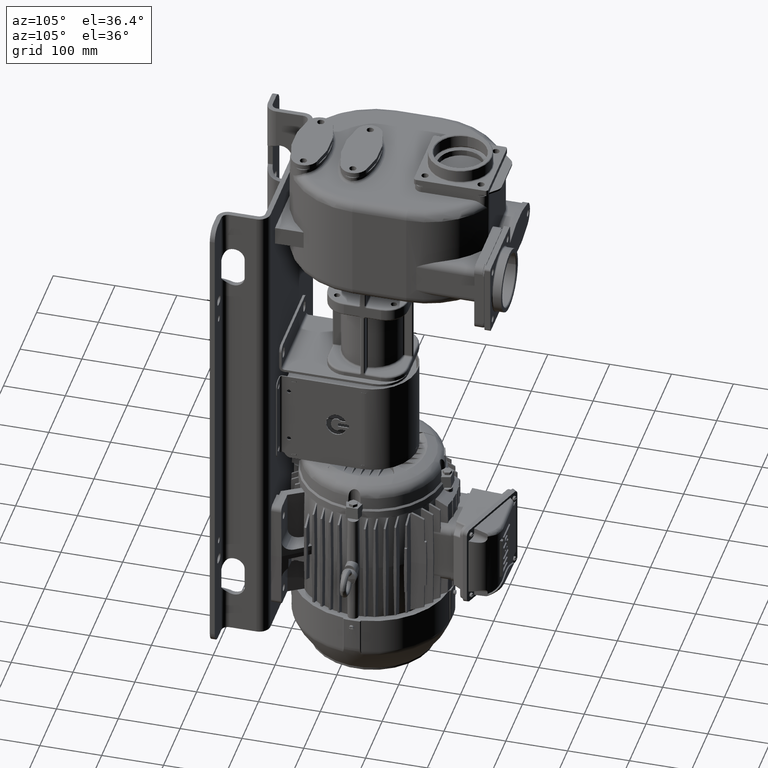
[diagram: clean part render]
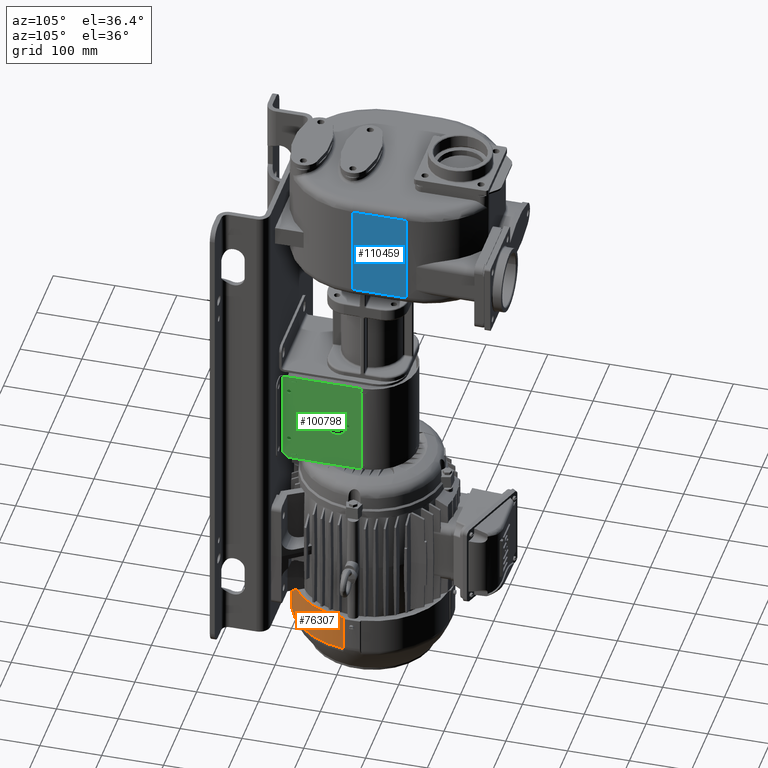
[diagram: same view with three faces highlighted in distinct colors, each labeled with its STEP entity id]
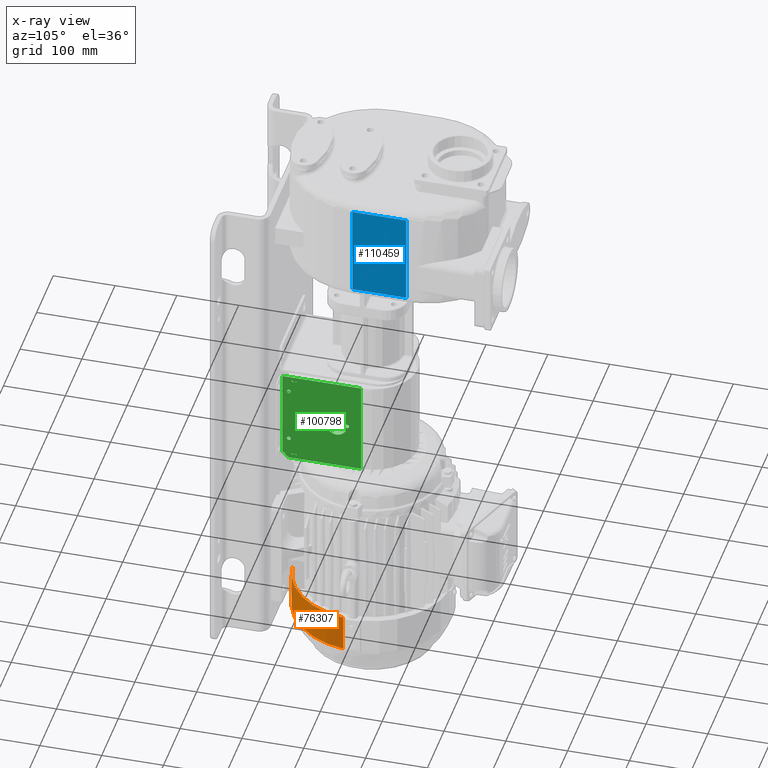
[diagram: x-ray of the same camera — body ghosted, the three highlighted faces saturated]
A machine part, auxiliary view with three faces highlighted in distinct colors.
The next image is the same camera in x-ray (body ghosted, the three faces saturated) — at least one of them is partly hidden behind the body in this view.
Their STEP definitions:

[orange] entity #76307 — the highlighted cylindrical surface (partial cylindrical patch) has radius 127.75 mm, axis along (0, 0, -1).
#5835=CARTESIAN_POINT('',(1.703458986104E-13,1.32E2,-7.E2));
#5836=DIRECTION('',(0.E0,0.E0,1.E0));
#5837=DIRECTION('',(1.165048543689E-1,-9.931901222367E-1,0.E0));
#5838=AXIS2_PLACEMENT_3D('',#5835,#5836,#5837);
#6076=DIRECTION('',(0.E0,0.E0,1.E0));
#6077=VECTOR('',#6076,5.973225400103E1);
#6078=CARTESIAN_POINT('',(1.488349514563E1,5.119961884266E0,-7.597322540010E2));
#6079=LINE('',#6078,#6077);
#8631=DIRECTION('',(0.E0,0.E0,-1.E0));
#8632=VECTOR('',#8631,5.973225400103E1);
#8633=CARTESIAN_POINT('',(1.268800381157E2,1.171165048544E2,-7.E2));
#8634=LINE('',#8633,#8632);
#8669=CARTESIAN_POINT('',(2.011025406983E-13,1.32E2,-7.597322540010E2));
#8670=DIRECTION('',(0.E0,0.E0,-1.E0));
#8671=DIRECTION('',(9.931901222367E-1,-1.165048543689E-1,0.E0));
#8672=AXIS2_PLACEMENT_3D('',#8669,#8670,#8671);
#63178=CARTESIAN_POINT('',(1.488349514563E1,5.119961884266E0,-7.E2));
#63179=CARTESIAN_POINT('',(1.268800381157E2,1.171165048544E2,-7.E2));
#63180=VERTEX_POINT('',#63178);
#63181=VERTEX_POINT('',#63179);
#63182=CARTESIAN_POINT('',(1.488349514563E1,5.119961884266E0,
-7.597322540010E2));
#63183=VERTEX_POINT('',#63182);
#63184=CARTESIAN_POINT('',(1.268800381157E2,1.171165048544E2,
-7.597322540010E2));
#63185=VERTEX_POINT('',#63184);
#76296=CARTESIAN_POINT('',(2.372577583840E-13,1.32E2,-8.299490429497E2));
#76297=DIRECTION('',(0.E0,0.E0,-1.E0));
#76298=DIRECTION('',(0.E0,-1.E0,0.E0));
#76299=AXIS2_PLACEMENT_3D('',#76296,#76297,#76298);
#76300=CYLINDRICAL_SURFACE('',#76299,1.2775E2);
#76301=ORIENTED_EDGE('',*,*,#72768,.T.);
#76302=ORIENTED_EDGE('',*,*,#76160,.T.);
#76303=ORIENTED_EDGE('',*,*,#76287,.T.);
#76304=ORIENTED_EDGE('',*,*,#72916,.T.);
#76305=EDGE_LOOP('',(#76301,#76302,#76303,#76304));
#76306=FACE_OUTER_BOUND('',#76305,.F.);
#76307=ADVANCED_FACE('',(#76306),#76300,.T.);
#5839=CIRCLE('',#5838,1.2775E2);
#8673=CIRCLE('',#8672,1.2775E2);
#72768=EDGE_CURVE('',#63180,#63181,#5839,.T.);
#72916=EDGE_CURVE('',#63183,#63180,#6079,.T.);
#76160=EDGE_CURVE('',#63181,#63185,#8634,.T.);
#76287=EDGE_CURVE('',#63185,#63183,#8673,.T.);

[blue] entity #110459 — the highlighted planar face has unit normal (1, 0, 0).
#33958=DIRECTION('',(0.E0,-1.E0,0.E0));
#33959=VECTOR('',#33958,8.709138630505E1);
#33960=CARTESIAN_POINT('',(1.33E2,2.210913863051E2,-5.5E1));
#33961=LINE('',#33960,#33959);
#33962=DIRECTION('',(0.E0,1.E0,0.E0));
#33963=VECTOR('',#33962,8.709138630482E1);
#33964=CARTESIAN_POINT('',(1.33E2,1.34E2,9.5E1));
#33965=LINE('',#33964,#33963);
#33966=DIRECTION('',(0.E0,-1.649217059215E-12,1.E0));
#33967=VECTOR('',#33966,1.5E2);
#33968=CARTESIAN_POINT('',(1.33E2,2.210913863051E2,-5.5E1));
#33969=LINE('',#33968,#33967);
#33980=DIRECTION('',(0.E0,-6.385410718697E-14,1.E0));
#33981=VECTOR('',#33980,1.5E2);
#33982=CARTESIAN_POINT('',(1.33E2,1.34E2,-5.5E1));
#33983=LINE('',#33982,#33981);
#58915=CARTESIAN_POINT('',(1.33E2,2.210913863051E2,9.5E1));
#58917=VERTEX_POINT('',#58915);
#58925=CARTESIAN_POINT('',(1.33E2,1.34E2,9.5E1));
#58926=VERTEX_POINT('',#58925);
#58954=CARTESIAN_POINT('',(1.33E2,2.210913863051E2,-5.5E1));
#58956=VERTEX_POINT('',#58954);
#58959=CARTESIAN_POINT('',(1.33E2,1.34E2,-5.5E1));
#58960=VERTEX_POINT('',#58959);
#110447=CARTESIAN_POINT('',(1.33E2,2.210913863051E2,-7.E1));
#110448=DIRECTION('',(1.E0,0.E0,0.E0));
#110449=DIRECTION('',(0.E0,-1.E0,0.E0));
#110450=AXIS2_PLACEMENT_3D('',#110447,#110448,#110449);
#110451=PLANE('',#110450);
#110452=ORIENTED_EDGE('',*,*,#107304,.T.);
#110454=ORIENTED_EDGE('',*,*,#110453,.T.);
#110455=ORIENTED_EDGE('',*,*,#110293,.T.);
#110456=ORIENTED_EDGE('',*,*,#110324,.F.);
#110457=EDGE_LOOP('',(#110452,#110454,#110455,#110456));
#110458=FACE_OUTER_BOUND('',#110457,.F.);
#110459=ADVANCED_FACE('',(#110458),#110451,.T.);
#107304=EDGE_CURVE('',#58956,#58960,#33961,.T.);
#110293=EDGE_CURVE('',#58926,#58917,#33965,.T.);
#110324=EDGE_CURVE('',#58956,#58917,#33969,.T.);
#110453=EDGE_CURVE('',#58960,#58926,#33983,.T.);

[green] entity #100798 — the highlighted planar face has unit normal (1, 0, 0).
#24159=DIRECTION('',(0.E0,-1.E0,0.E0));
#24160=VECTOR('',#24159,6.E0);
#24161=CARTESIAN_POINT('',(7.25E1,2.65E1,-4.39E2));
#24162=LINE('',#24161,#24160);
#24979=DIRECTION('',(0.E0,1.E0,0.E0));
#24980=VECTOR('',#24979,1.140501256289E2);
#24981=CARTESIAN_POINT('',(7.25E1,1.794987437107E1,-4.47E2));
#24982=LINE('',#24981,#24980);
#25536=CARTESIAN_POINT('',(7.25E1,1.794987437107E1,-4.37E2));
#25537=DIRECTION('',(1.E0,0.E0,0.E0));
#25538=DIRECTION('',(0.E0,-9.165151389912E-1,-4.E-1));
#25539=AXIS2_PLACEMENT_3D('',#25536,#25537,#25538);
#25541=DIRECTION('',(0.E0,0.E0,-1.E0));
#25542=VECTOR('',#25541,6.5E0);
#25543=CARTESIAN_POINT('',(7.25E1,1.32E2,-2.91E2));
#25544=LINE('',#25543,#25542);
#25545=DIRECTION('',(-5.684341886080E-14,-1.E0,0.E0));
#25546=VECTOR('',#25545,5.000000000001E-1);
#25547=CARTESIAN_POINT('',(7.25E1,1.32E2,-2.975E2));
#25548=LINE('',#25547,#25546);
#25549=DIRECTION('',(0.E0,0.E0,-1.E0));
#25550=VECTOR('',#25549,1.7E0);
#25551=CARTESIAN_POINT('',(7.25E1,1.315E2,-2.975E2));
#25552=LINE('',#25551,#25550);
#25553=DIRECTION('',(-8.526512829119E-14,-1.E0,-1.136868377216E-13));
#25554=VECTOR('',#25553,5.000000000001E-1);
#25555=CARTESIAN_POINT('',(7.25E1,1.32E2,-2.992E2));
#25556=LINE('',#25555,#25554);
#25557=DIRECTION('',(0.E0,0.E0,-1.E0));
#25558=VECTOR('',#25557,1.396E2);
#25559=CARTESIAN_POINT('',(7.25E1,1.32E2,-2.992E2));
#25560=LINE('',#25559,#25558);
#25561=DIRECTION('',(-1.136868377216E-13,-1.E0,1.136868377216E-13));
#25562=VECTOR('',#25561,5.000000000001E-1);
#25563=CARTESIAN_POINT('',(7.25E1,1.32E2,-4.388E2));
#25564=LINE('',#25563,#25562);
#25565=DIRECTION('',(0.E0,0.E0,1.E0));
#25566=VECTOR('',#25565,1.7E0);
#25567=CARTESIAN_POINT('',(7.25E1,1.315E2,-4.405E2));
#25568=LINE('',#25567,#25566);
#25569=DIRECTION('',(-8.526512829119E-14,-1.E0,0.E0));
#25570=VECTOR('',#25569,5.000000000001E-1);
#25571=CARTESIAN_POINT('',(7.25E1,1.32E2,-4.405E2));
#25572=LINE('',#25571,#25570);
#25573=DIRECTION('',(0.E0,0.E0,-1.E0));
#25574=VECTOR('',#25573,6.5E0);
#25575=CARTESIAN_POINT('',(7.25E1,1.32E2,-4.405E2));
#25576=LINE('',#25575,#25574);
#25577=DIRECTION('',(0.E0,0.E0,-1.E0));
#25578=VECTOR('',#25577,3.E0);
#25579=CARTESIAN_POINT('',(7.25E1,1.12E2,-3.675E2));
#25580=LINE('',#25579,#25578);
#25581=DIRECTION('',(0.E0,-1.E0,0.E0));
#25582=VECTOR('',#25581,1.5E1);
#25583=CARTESIAN_POINT('',(7.25E1,1.105E2,-3.66E2));
#25584=LINE('',#25583,#25582);
#25585=DIRECTION('',(0.E0,0.E0,1.E0));
#25586=VECTOR('',#25585,3.E0);
#25587=CARTESIAN_POINT('',(7.25E1,9.4E1,-3.705E2));
#25588=LINE('',#25587,#25586);
#25589=DIRECTION('',(0.E0,-1.E0,0.E0));
#25590=VECTOR('',#25589,1.5E1);
#25591=CARTESIAN_POINT('',(7.25E1,1.105E2,-3.72E2));
#25592=LINE('',#25591,#25590);
#25593=CARTESIAN_POINT('',(7.25E1,1.063165229707E2,-3.587543294009E2));
#25594=CARTESIAN_POINT('',(7.25E1,1.059499404292E2,-3.581144792124E2));
#25595=CARTESIAN_POINT('',(7.25E1,1.051149837009E2,-3.568257663488E2));
#25596=CARTESIAN_POINT('',(7.25E1,1.035149445746E2,-3.549352588367E2));
#25597=CARTESIAN_POINT('',(7.25E1,1.015377288933E2,-3.531816330027E2));
#25598=CARTESIAN_POINT('',(7.25E1,9.917791833306E1,-3.516821146373E2));
#25599=CARTESIAN_POINT('',(7.25E1,9.646620948636E1,-3.505679347464E2));
#25600=CARTESIAN_POINT('',(7.25E1,9.347842042968E1,-3.499671182359E2));
#25601=CARTESIAN_POINT('',(7.25E1,9.033626563003E1,-3.499805764945E2));
#25602=CARTESIAN_POINT('',(7.25E1,8.719589088271E1,-3.506576337928E2));
#25603=CARTESIAN_POINT('',(7.25E1,8.422456107459E1,-3.519801118655E2));
#25604=CARTESIAN_POINT('',(7.25E1,8.157190577936E1,-3.538625153204E2));
#25605=CARTESIAN_POINT('',(7.25E1,7.934563226864E1,-3.561691807838E2));
#25606=CARTESIAN_POINT('',(7.25E1,7.759952727588E1,-3.587418383373E2));
#25607=CARTESIAN_POINT('',(7.25E1,7.654639707953E1,-3.609792422868E2));
#25608=CARTESIAN_POINT('',(7.25E1,7.592614786772E1,-3.627612455834E2));
#25609=CARTESIAN_POINT('',(7.25E1,7.556468830272E1,-3.640812118110E2));
#25610=CARTESIAN_POINT('',(7.25E1,7.529902730694E1,-3.653736764528E2));
#25611=CARTESIAN_POINT('',(7.25E1,7.515027836409E1,-3.664205561810E2));
#25612=CARTESIAN_POINT('',(7.25E1,7.507045414586E1,-3.672365736860E2));
#25613=CARTESIAN_POINT('',(7.25E1,7.502907433536E1,-3.678372447715E2));
#25614=CARTESIAN_POINT('',(7.25E1,7.500909258773E1,-3.683276985578E2));
#25615=CARTESIAN_POINT('',(7.25E1,7.500127421311E1,-3.687141538697E2));
#25616=CARTESIAN_POINT('',(7.25E1,7.499936289345E1,-3.69E2));
#25617=CARTESIAN_POINT('',(7.25E1,7.500127421311E1,-3.692858461303E2));
#25618=CARTESIAN_POINT('',(7.25E1,7.500909258773E1,-3.696723014422E2));
#25619=CARTESIAN_POINT('',(7.25E1,7.502907433536E1,-3.701627552285E2));
#25620=CARTESIAN_POINT('',(7.25E1,7.507045414586E1,-3.707634263140E2));
#25621=CARTESIAN_POINT('',(7.25E1,7.515027836409E1,-3.715794438190E2));
#25622=CARTESIAN_POINT('',(7.25E1,7.529902730694E1,-3.726263235472E2));
#25623=CARTESIAN_POINT('',(7.25E1,7.556468830272E1,-3.739187881890E2));
#25624=CARTESIAN_POINT('',(7.25E1,7.592614786772E1,-3.752387544166E2));
#25625=CARTESIAN_POINT('',(7.25E1,7.654639707953E1,-3.770207577132E2));
#25626=CARTESIAN_POINT('',(7.25E1,7.759952727588E1,-3.792581616627E2));
#25627=CARTESIAN_POINT('',(7.25E1,7.934563226864E1,-3.818308192162E2));
#25628=CARTESIAN_POINT('',(7.25E1,8.157190577936E1,-3.841374846796E2));
#25629=CARTESIAN_POINT('',(7.25E1,8.422456107459E1,-3.860198881345E2));
#25630=CARTESIAN_POINT('',(7.25E1,8.719589088271E1,-3.873423662072E2));
#25631=CARTESIAN_POINT('',(7.25E1,9.033626563003E1,-3.880194235055E2));
#25632=CARTESIAN_POINT('',(7.25E1,9.347842042968E1,-3.880328817641E2));
#25633=CARTESIAN_POINT('',(7.25E1,9.646620948636E1,-3.874320652536E2));
#25634=CARTESIAN_POINT('',(7.25E1,9.917791833306E1,-3.863178853627E2));
#25635=CARTESIAN_POINT('',(7.25E1,1.015377288933E2,-3.848183669973E2));
#25636=CARTESIAN_POINT('',(7.25E1,1.035149445746E2,-3.830647411633E2));
#25637=CARTESIAN_POINT('',(7.25E1,1.051149837009E2,-3.811742336512E2));
#25638=CARTESIAN_POINT('',(7.25E1,1.059499404292E2,-3.798855207876E2));
#25639=CARTESIAN_POINT('',(7.25E1,1.063165229707E2,-3.792456705991E2));
#25641=DIRECTION('',(0.E0,1.E0,0.E0));
#25642=VECTOR('',#25641,6.181694335920E0);
#25643=CARTESIAN_POINT('',(7.25E1,9.883330054910E1,-3.77E2));
#25644=LINE('',#25643,#25642);
#25645=CARTESIAN_POINT('',(7.25E1,9.776278129792E1,-3.774492914139E2));
#25646=CARTESIAN_POINT('',(7.25E1,9.724106223236E1,-3.779808472714E2));
#25647=CARTESIAN_POINT('',(7.25E1,9.632561195741E1,-3.787294597224E2));
#25648=CARTESIAN_POINT('',(7.25E1,9.483947037143E1,-3.794747212595E2));
#25649=CARTESIAN_POINT('',(7.25E1,9.360700337410E1,-3.798622103878E2));
#25650=CARTESIAN_POINT('',(7.25E1,9.228153961872E1,-3.800363254971E2));
#25651=CARTESIAN_POINT('',(7.25E1,9.090054783703E1,-3.799622758935E2));
#25652=CARTESIAN_POINT('',(7.25E1,8.951140392238E1,-3.796190205545E2));
#25653=CARTESIAN_POINT('',(7.25E1,8.816708194379E1,-3.790040945998E2));
#25654=CARTESIAN_POINT('',(7.25E1,8.691984407630E1,-3.781357736473E2));
#25655=CARTESIAN_POINT('',(7.25E1,8.581464086271E1,-3.770514227231E2));
#25656=CARTESIAN_POINT('',(7.25E1,8.488384103300E1,-3.758023407164E2));
#25657=CARTESIAN_POINT('',(7.25E1,8.414456312225E1,-3.744465225054E2));
#25658=CARTESIAN_POINT('',(7.25E1,8.359890908761E1,-3.730412522953E2));
#25659=CARTESIAN_POINT('',(7.25E1,8.329694314135E1,-3.718713269262E2));
#25660=CARTESIAN_POINT('',(7.25E1,8.313747245413E1,-3.709563019919E2));
#25661=CARTESIAN_POINT('',(7.25E1,8.305599054730E1,-3.702842891930E2));
#25662=CARTESIAN_POINT('',(7.25E1,8.301734008613E1,-3.697392851087E2));
#25663=CARTESIAN_POINT('',(7.25E1,8.300240270121E1,-3.693129322310E2));
#25664=CARTESIAN_POINT('',(7.25E1,8.299879864939E1,-3.69E2));
#25665=CARTESIAN_POINT('',(7.25E1,8.300240270121E1,-3.686870677690E2));
#25666=CARTESIAN_POINT('',(7.25E1,8.301734008613E1,-3.682607148913E2));
#25667=CARTESIAN_POINT('',(7.25E1,8.305599054730E1,-3.677157108070E2));
#25668=CARTESIAN_POINT('',(7.25E1,8.313747245413E1,-3.670436980081E2));
#25669=CARTESIAN_POINT('',(7.25E1,8.329694314135E1,-3.661286730738E2));
#25670=CARTESIAN_POINT('',(7.25E1,8.359890908761E1,-3.649587477047E2));
#25671=CARTESIAN_POINT('',(7.25E1,8.414456312225E1,-3.635534774946E2));
#25672=CARTESIAN_POINT('',(7.25E1,8.488384103300E1,-3.621976592836E2));
#25673=CARTESIAN_POINT('',(7.25E1,8.581464086271E1,-3.609485772769E2));
#25674=CARTESIAN_POINT('',(7.25E1,8.691984407630E1,-3.598642263527E2));
#25675=CARTESIAN_POINT('',(7.25E1,8.816708194380E1,-3.589959054002E2));
#25676=CARTESIAN_POINT('',(7.25E1,8.951140392238E1,-3.583809794455E2));
#25677=CARTESIAN_POINT('',(7.25E1,9.090054783703E1,-3.580377241065E2));
#25678=CARTESIAN_POINT('',(7.25E1,9.228153961872E1,-3.579636745029E2));
#25679=CARTESIAN_POINT('',(7.25E1,9.360700337410E1,-3.581377896122E2));
#25680=CARTESIAN_POINT('',(7.25E1,9.483947037143E1,-3.585252787405E2));
#25681=CARTESIAN_POINT('',(7.25E1,9.632561195742E1,-3.592705402776E2));
#25682=CARTESIAN_POINT('',(7.25E1,9.724106223236E1,-3.600191527286E2));
#25683=CARTESIAN_POINT('',(7.25E1,9.776278129792E1,-3.605507085861E2));
#25685=DIRECTION('',(0.E0,-1.E0,0.E0));
#25686=VECTOR('',#25685,6.181694335920E0);
#25687=CARTESIAN_POINT('',(7.25E1,1.050149948850E2,-3.61E2));
#25688=LINE('',#25687,#25686);
#25689=CARTESIAN_POINT('',(7.25E1,1.5E1,-3.19E2));
#25690=DIRECTION('',(-1.E0,0.E0,0.E0));
#25691=DIRECTION('',(0.E0,-1.054535647517E-13,1.E0));
#25692=AXIS2_PLACEMENT_3D('',#25689,#25690,#25691);
#25694=CARTESIAN_POINT('',(7.25E1,1.5E1,-3.19E2));
#25695=DIRECTION('',(-1.E0,0.E0,0.E0));
#25696=DIRECTION('',(0.E0,-1.054535647517E-13,-1.E0));
#25697=AXIS2_PLACEMENT_3D('',#25694,#25695,#25696);
#25699=CARTESIAN_POINT('',(7.25E1,1.5E1,-4.1E2));
#25700=DIRECTION('',(-1.E0,0.E0,0.E0));
#25701=DIRECTION('',(0.E0,-1.054535647517E-13,1.E0));
#25702=AXIS2_PLACEMENT_3D('',#25699,#25700,#25701);
#25704=CARTESIAN_POINT('',(7.25E1,1.5E1,-4.1E2));
#25705=DIRECTION('',(-1.E0,0.E0,0.E0));
#25706=DIRECTION('',(0.E0,-1.054535647517E-13,-1.E0));
#25707=AXIS2_PLACEMENT_3D('',#25704,#25705,#25706);
#25709=DIRECTION('',(0.E0,0.E0,-1.E0));
#25710=VECTOR('',#25709,1.5E0);
#25711=CARTESIAN_POINT('',(7.25E1,2.05E1,-2.975E2));
#25712=LINE('',#25711,#25710);
#25713=DIRECTION('',(1.578983857245E-14,-1.E0,0.E0));
#25714=VECTOR('',#25713,8.999999999998E-1);
#25715=CARTESIAN_POINT('',(7.25E1,2.05E1,-2.975E2));
#25716=LINE('',#25715,#25714);
#25717=DIRECTION('',(0.E0,0.E0,-1.E0));
#25718=VECTOR('',#25717,1.7E0);
#25719=CARTESIAN_POINT('',(7.25E1,1.96E1,-2.975E2));
#25720=LINE('',#25719,#25718);
#25721=DIRECTION('',(0.E0,-1.E0,0.E0));
#25722=VECTOR('',#25721,7.8E0);
#25723=CARTESIAN_POINT('',(7.25E1,2.74E1,-2.992E2));
#25724=LINE('',#25723,#25722);
#25725=DIRECTION('',(0.E0,0.E0,-1.E0));
#25726=VECTOR('',#25725,1.7E0);
#25727=CARTESIAN_POINT('',(7.25E1,2.74E1,-2.975E2));
#25728=LINE('',#25727,#25726);
#25729=DIRECTION('',(-3.157967714489E-14,-1.E0,0.E0));
#25730=VECTOR('',#25729,9.000000000002E-1);
#25731=CARTESIAN_POINT('',(7.25E1,2.74E1,-2.975E2));
#25732=LINE('',#25731,#25730);
#25733=DIRECTION('',(1.894780628694E-14,0.E0,-1.E0));
#25734=VECTOR('',#25733,1.5E0);
#25735=CARTESIAN_POINT('',(7.25E1,2.65E1,-2.975E2));
#25736=LINE('',#25735,#25734);
#25737=DIRECTION('',(0.E0,-1.E0,0.E0));
#25738=VECTOR('',#25737,9.999999999998E-1);
#25739=CARTESIAN_POINT('',(7.25E1,2.05E1,-4.405E2));
#25740=LINE('',#25739,#25738);
#25741=DIRECTION('',(0.E0,0.E0,1.E0));
#25742=VECTOR('',#25741,1.5E0);
#25743=CARTESIAN_POINT('',(7.25E1,2.05E1,-4.405E2));
#25744=LINE('',#25743,#25742);
#25745=DIRECTION('',(0.E0,0.E0,1.E0));
#25746=VECTOR('',#25745,1.5E0);
#25747=CARTESIAN_POINT('',(7.25E1,2.65E1,-4.405E2));
#25748=LINE('',#25747,#25746);
#25749=DIRECTION('',(3.157967714489E-14,-1.E0,0.E0));
#25750=VECTOR('',#25749,9.000000000002E-1);
#25751=CARTESIAN_POINT('',(7.25E1,2.74E1,-4.405E2));
#25752=LINE('',#25751,#25750);
#25753=DIRECTION('',(0.E0,0.E0,1.E0));
#25754=VECTOR('',#25753,1.7E0);
#25755=CARTESIAN_POINT('',(7.25E1,2.74E1,-4.405E2));
#25756=LINE('',#25755,#25754);
#25757=DIRECTION('',(0.E0,-1.E0,0.E0));
#25758=VECTOR('',#25757,7.9E0);
#25759=CARTESIAN_POINT('',(7.25E1,2.74E1,-4.388E2));
#25760=LINE('',#25759,#25758);
#25761=DIRECTION('',(0.E0,0.E0,1.E0));
#25762=VECTOR('',#25761,1.7E0);
#25763=CARTESIAN_POINT('',(7.25E1,1.95E1,-4.405E2));
#25764=LINE('',#25763,#25762);
#25769=CARTESIAN_POINT('',(7.25E1,4.202147286199E0,-4.43E2));
#25770=DIRECTION('',(-1.E0,0.E0,0.E0));
#25771=DIRECTION('',(0.E0,7.957054276019E-2,9.968292374950E-1));
#25772=AXIS2_PLACEMENT_3D('',#25769,#25770,#25771);
#25887=DIRECTION('',(0.E0,1.E0,0.E0));
#25888=VECTOR('',#25887,1.274E2);
#25889=CARTESIAN_POINT('',(7.25E1,4.6E0,-2.91E2));
#25890=LINE('',#25889,#25888);
#25917=DIRECTION('',(0.E0,0.E0,-1.E0));
#25918=VECTOR('',#25917,1.470158538125E2);
#25919=CARTESIAN_POINT('',(7.25E1,4.6E0,-2.91E2));
#25920=LINE('',#25919,#25918);
#26171=DIRECTION('',(0.E0,-1.E0,0.E0));
#26172=VECTOR('',#26171,6.E0);
#26173=CARTESIAN_POINT('',(7.25E1,2.65E1,-2.99E2));
#26174=LINE('',#26173,#26172);
#27190=CARTESIAN_POINT('',(7.25E1,1.105E2,-3.675E2));
#27191=DIRECTION('',(-1.E0,0.E0,0.E0));
#27192=DIRECTION('',(0.E0,-2.273736754432E-13,1.E0));
#27193=AXIS2_PLACEMENT_3D('',#27190,#27191,#27192);
#27208=CARTESIAN_POINT('',(7.25E1,9.55E1,-3.675E2));
#27209=DIRECTION('',(-1.E0,0.E0,0.E0));
#27210=DIRECTION('',(0.E0,-1.E0,0.E0));
#27211=AXIS2_PLACEMENT_3D('',#27208,#27209,#27210);
#27226=CARTESIAN_POINT('',(7.25E1,9.55E1,-3.705E2));
#27227=DIRECTION('',(-1.E0,0.E0,0.E0));
#27228=DIRECTION('',(0.E0,-2.273736754432E-13,-1.E0));
#27229=AXIS2_PLACEMENT_3D('',#27226,#27227,#27228);
#27244=CARTESIAN_POINT('',(7.25E1,1.105E2,-3.705E2));
#27245=DIRECTION('',(-1.E0,0.E0,0.E0));
#27246=DIRECTION('',(0.E0,1.E0,0.E0));
#27247=AXIS2_PLACEMENT_3D('',#27244,#27245,#27246);
#27262=CARTESIAN_POINT('',(7.25E1,1.050149948850E2,-3.595E2));
#27263=DIRECTION('',(-1.E0,0.E0,0.E0));
#27264=DIRECTION('',(0.E0,8.676853904266E-1,4.971137327014E-1));
#27265=AXIS2_PLACEMENT_3D('',#27262,#27263,#27264);
#27270=CARTESIAN_POINT('',(7.25E1,1.050149948850E2,-3.61E2));
#27275=CARTESIAN_POINT('',(7.25E1,9.883330054910E1,-3.61E2));
#27282=CARTESIAN_POINT('',(7.25E1,9.883330054910E1,-3.595E2));
#27283=DIRECTION('',(-1.E0,0.E0,0.E0));
#27284=DIRECTION('',(0.E0,-2.273736754432E-13,-1.E0));
#27285=AXIS2_PLACEMENT_3D('',#27282,#27283,#27284);
#27300=CARTESIAN_POINT('',(7.25E1,9.883330054910E1,-3.785E2));
#27301=DIRECTION('',(-1.E0,0.E0,0.E0));
#27302=DIRECTION('',(0.E0,-7.136795007890E-1,7.004723907147E-1));
#27303=AXIS2_PLACEMENT_3D('',#27300,#27301,#27302);
#27308=CARTESIAN_POINT('',(7.25E1,1.050149948850E2,-3.77E2));
#27313=CARTESIAN_POINT('',(7.25E1,9.883330054910E1,-3.77E2));
#27320=CARTESIAN_POINT('',(7.25E1,1.050149948850E2,-3.785E2));
#27321=DIRECTION('',(-1.E0,0.E0,0.E0));
#27322=DIRECTION('',(0.E0,-2.273736754432E-13,1.E0));
#27323=AXIS2_PLACEMENT_3D('',#27320,#27321,#27322);
#67698=CARTESIAN_POINT('',(7.25E1,2.65E1,-2.99E2));
#67699=CARTESIAN_POINT('',(7.25E1,2.05E1,-2.99E2));
#67700=VERTEX_POINT('',#67698);
#67701=VERTEX_POINT('',#67699);
#67854=CARTESIAN_POINT('',(7.25E1,4.6E0,-2.91E2));
#67855=CARTESIAN_POINT('',(7.25E1,1.32E2,-2.91E2));
#67856=VERTEX_POINT('',#67854);
#67857=VERTEX_POINT('',#67855);
#67870=CARTESIAN_POINT('',(7.25E1,2.74E1,-4.388E2));
#67871=CARTESIAN_POINT('',(7.25E1,1.95E1,-4.388E2));
#67872=VERTEX_POINT('',#67870);
#67873=VERTEX_POINT('',#67871);
#67890=CARTESIAN_POINT('',(7.25E1,1.32E2,-4.388E2));
#67891=CARTESIAN_POINT('',(7.25E1,1.315E2,-4.388E2));
#67892=VERTEX_POINT('',#67890);
#67893=VERTEX_POINT('',#67891);
#67894=CARTESIAN_POINT('',(7.25E1,1.32E2,-4.405E2));
#67895=CARTESIAN_POINT('',(7.25E1,1.315E2,-4.405E2));
#67896=VERTEX_POINT('',#67894);
#67897=VERTEX_POINT('',#67895);
#67918=CARTESIAN_POINT('',(7.25E1,1.32E2,-4.47E2));
#67919=VERTEX_POINT('',#67918);
#67934=CARTESIAN_POINT('',(7.25E1,1.5E1,-3.1585E2));
#67935=CARTESIAN_POINT('',(7.25E1,1.5E1,-3.2215E2));
#67936=VERTEX_POINT('',#67934);
#67937=VERTEX_POINT('',#67935);
#67938=CARTESIAN_POINT('',(7.25E1,1.5E1,-4.0685E2));
#67939=CARTESIAN_POINT('',(7.25E1,1.5E1,-4.1315E2));
#67940=VERTEX_POINT('',#67938);
#67941=VERTEX_POINT('',#67939);
#67960=CARTESIAN_POINT('',(7.25E1,1.95E1,-4.405E2));
#67961=VERTEX_POINT('',#67960);
#67962=CARTESIAN_POINT('',(7.25E1,2.74E1,-4.405E2));
#67963=VERTEX_POINT('',#67962);
#67986=CARTESIAN_POINT('',(7.25E1,2.74E1,-2.992E2));
#67987=CARTESIAN_POINT('',(7.25E1,1.96E1,-2.992E2));
#67988=VERTEX_POINT('',#67986);
#67989=VERTEX_POINT('',#67987);
#67990=CARTESIAN_POINT('',(7.25E1,1.96E1,-2.975E2));
#67991=VERTEX_POINT('',#67990);
#67992=CARTESIAN_POINT('',(7.25E1,2.74E1,-2.975E2));
#67993=VERTEX_POINT('',#67992);
#68006=CARTESIAN_POINT('',(7.25E1,1.32E2,-2.992E2));
#68008=VERTEX_POINT('',#68006);
#68010=CARTESIAN_POINT('',(7.25E1,1.32E2,-2.975E2));
#68011=VERTEX_POINT('',#68010);
#68058=CARTESIAN_POINT('',(7.25E1,1.315E2,-2.992E2));
#68059=VERTEX_POINT('',#68058);
#68060=CARTESIAN_POINT('',(7.25E1,1.315E2,-2.975E2));
#68061=VERTEX_POINT('',#68060);
#68078=CARTESIAN_POINT('',(7.25E1,1.794987437107E1,-4.47E2));
#68080=VERTEX_POINT('',#68078);
#68088=CARTESIAN_POINT('',(7.25E1,8.784722981155E0,-4.41E2));
#68089=VERTEX_POINT('',#68088);
#68123=VERTEX_POINT('',#27270);
#68125=CARTESIAN_POINT('',(7.25E1,1.063165229707E2,-3.587543294009E2));
#68127=VERTEX_POINT('',#68125);
#68129=CARTESIAN_POINT('',(7.25E1,1.12E2,-3.675E2));
#68131=VERTEX_POINT('',#68129);
#68133=CARTESIAN_POINT('',(7.25E1,1.105E2,-3.66E2));
#68135=VERTEX_POINT('',#68133);
#68137=CARTESIAN_POINT('',(7.25E1,1.105E2,-3.72E2));
#68139=VERTEX_POINT('',#68137);
#68141=CARTESIAN_POINT('',(7.25E1,1.12E2,-3.705E2));
#68143=VERTEX_POINT('',#68141);
#68145=CARTESIAN_POINT('',(7.25E1,1.063165229707E2,-3.792456705991E2));
#68147=VERTEX_POINT('',#68145);
#68149=VERTEX_POINT('',#27308);
#68151=VERTEX_POINT('',#27313);
#68153=CARTESIAN_POINT('',(7.25E1,9.776278129792E1,-3.774492914139E2));
#68155=VERTEX_POINT('',#68153);
#68157=CARTESIAN_POINT('',(7.25E1,9.4E1,-3.705E2));
#68159=VERTEX_POINT('',#68157);
#68161=CARTESIAN_POINT('',(7.25E1,9.55E1,-3.72E2));
#68163=VERTEX_POINT('',#68161);
#68165=CARTESIAN_POINT('',(7.25E1,9.55E1,-3.66E2));
#68167=VERTEX_POINT('',#68165);
#68169=CARTESIAN_POINT('',(7.25E1,9.4E1,-3.675E2));
#68171=VERTEX_POINT('',#68169);
#68173=CARTESIAN_POINT('',(7.25E1,9.776278129792E1,-3.605507085861E2));
#68175=VERTEX_POINT('',#68173);
#68177=VERTEX_POINT('',#27275);
#68248=CARTESIAN_POINT('',(7.25E1,4.6E0,-4.380158538125E2));
#68249=VERTEX_POINT('',#68248);
#68367=CARTESIAN_POINT('',(7.25E1,2.65E1,-2.975E2));
#68368=VERTEX_POINT('',#68367);
#68369=CARTESIAN_POINT('',(7.25E1,2.05E1,-2.975E2));
#68370=VERTEX_POINT('',#68369);
#68412=CARTESIAN_POINT('',(7.25E1,2.05E1,-4.39E2));
#68414=VERTEX_POINT('',#68412);
#68415=CARTESIAN_POINT('',(7.25E1,2.65E1,-4.39E2));
#68417=VERTEX_POINT('',#68415);
#68631=CARTESIAN_POINT('',(7.25E1,2.65E1,-4.405E2));
#68632=VERTEX_POINT('',#68631);
#68633=CARTESIAN_POINT('',(7.25E1,2.05E1,-4.405E2));
#68634=VERTEX_POINT('',#68633);
#100687=CARTESIAN_POINT('',(7.25E1,2.35E1,-2.9825E2));
#100688=DIRECTION('',(1.E0,0.E0,0.E0));
#100689=DIRECTION('',(0.E0,-1.E0,0.E0));
#100690=AXIS2_PLACEMENT_3D('',#100687,#100688,#100689);
#100691=PLANE('',#100690);
#100692=ORIENTED_EDGE('',*,*,#100217,.F.);
#100694=ORIENTED_EDGE('',*,*,#100693,.F.);
#100696=ORIENTED_EDGE('',*,*,#100695,.F.);
#100698=ORIENTED_EDGE('',*,*,#100697,.T.);
#100699=ORIENTED_EDGE('',*,*,#100489,.T.);
#100701=ORIENTED_EDGE('',*,*,#100700,.T.);
#100703=ORIENTED_EDGE('',*,*,#100702,.T.);
#100705=ORIENTED_EDGE('',*,*,#100704,.F.);
#100706=ORIENTED_EDGE('',*,*,#100473,.T.);
#100708=ORIENTED_EDGE('',*,*,#100707,.T.);
#100709=ORIENTED_EDGE('',*,*,#100368,.F.);
#100710=ORIENTED_EDGE('',*,*,#100411,.F.);
#100711=ORIENTED_EDGE('',*,*,#100460,.T.);
#100712=ORIENTED_EDGE('',*,*,#100200,.F.);
#100713=EDGE_LOOP('',(#100692,#100694,#100696,#100698,#100699,#100701,#100703,
#100705,#100706,#100708,#100709,#100710,#100711,#100712));
#100714=FACE_OUTER_BOUND('',#100713,.F.);
#100716=ORIENTED_EDGE('',*,*,#100715,.F.);
#100718=ORIENTED_EDGE('',*,*,#100717,.F.);
#100720=ORIENTED_EDGE('',*,*,#100719,.T.);
#100722=ORIENTED_EDGE('',*,*,#100721,.F.);
#100724=ORIENTED_EDGE('',*,*,#100723,.F.);
#100726=ORIENTED_EDGE('',*,*,#100725,.F.);
#100728=ORIENTED_EDGE('',*,*,#100727,.F.);
#100730=ORIENTED_EDGE('',*,*,#100729,.F.);
#100731=EDGE_LOOP('',(#100716,#100718,#100720,#100722,#100724,#100726,#100728,
#100730));
#100732=FACE_BOUND('',#100731,.F.);
#100734=ORIENTED_EDGE('',*,*,#100733,.T.);
#100736=ORIENTED_EDGE('',*,*,#100735,.F.);
#100738=ORIENTED_EDGE('',*,*,#100737,.F.);
#100740=ORIENTED_EDGE('',*,*,#100739,.F.);
#100742=ORIENTED_EDGE('',*,*,#100741,.T.);
#100744=ORIENTED_EDGE('',*,*,#100743,.F.);
#100746=ORIENTED_EDGE('',*,*,#100745,.F.);
#100748=ORIENTED_EDGE('',*,*,#100747,.F.);
#100749=EDGE_LOOP('',(#100734,#100736,#100738,#100740,#100742,#100744,#100746,
#100748));
#100750=FACE_BOUND('',#100749,.F.);
#100752=ORIENTED_EDGE('',*,*,#100751,.F.);
#100754=ORIENTED_EDGE('',*,*,#100753,.F.);
#100755=EDGE_LOOP('',(#100752,#100754));
#100756=FACE_BOUND('',#100755,.F.);
#100758=ORIENTED_EDGE('',*,*,#100757,.F.);
#100760=ORIENTED_EDGE('',*,*,#100759,.F.);
#100761=EDGE_LOOP('',(#100758,#100760));
#100762=FACE_BOUND('',#100761,.F.);
#100764=ORIENTED_EDGE('',*,*,#100763,.F.);
#100766=ORIENTED_EDGE('',*,*,#100765,.T.);
#100768=ORIENTED_EDGE('',*,*,#100767,.T.);
#100770=ORIENTED_EDGE('',*,*,#100769,.F.);
#100772=ORIENTED_EDGE('',*,*,#100771,.F.);
#100774=ORIENTED_EDGE('',*,*,#100773,.T.);
#100776=ORIENTED_EDGE('',*,*,#100775,.T.);
#100778=ORIENTED_EDGE('',*,*,#100777,.T.);
#100779=EDGE_LOOP('',(#100764,#100766,#100768,#100770,#100772,#100774,#100776,
#100778));
#100780=FACE_BOUND('',#100779,.F.);
#100782=ORIENTED_EDGE('',*,*,#100781,.F.);
#100784=ORIENTED_EDGE('',*,*,#100783,.T.);
#100785=ORIENTED_EDGE('',*,*,#99490,.F.);
#100787=ORIENTED_EDGE('',*,*,#100786,.F.);
#100789=ORIENTED_EDGE('',*,*,#100788,.F.);
#100791=ORIENTED_EDGE('',*,*,#100790,.T.);
#100793=ORIENTED_EDGE('',*,*,#100792,.T.);
#100795=ORIENTED_EDGE('',*,*,#100794,.F.);
#100796=EDGE_LOOP('',(#100782,#100784,#100785,#100787,#100789,#100791,#100793,
#100795));
#100797=FACE_BOUND('',#100796,.F.);
#100798=ADVANCED_FACE('',(#100714,#100732,#100750,#100756,#100762,#100780,
#100797),#100691,.T.);
#25540=CIRCLE('',#25539,1.E1);
#25640=B_SPLINE_CURVE_WITH_KNOTS('',3,(#25593,#25594,#25595,#25596,#25597,
#25598,#25599,#25600,#25601,#25602,#25603,#25604,#25605,#25606,#25607,#25608,
#25609,#25610,#25611,#25612,#25613,#25614,#25615,#25616,#25617,#25618,#25619,
#25620,#25621,#25622,#25623,#25624,#25625,#25626,#25627,#25628,#25629,#25630,
#25631,#25632,#25633,#25634,#25635,#25636,#25637,#25638,#25639),.UNSPECIFIED.,
.F.,.F.,(4,1,1,1,1,1,1,1,1,1,1,1,1,1,1,1,1,1,1,1,1,1,1,1,1,1,1,1,1,1,1,1,1,1,1,
1,1,1,1,1,1,1,1,1,4),(0.E0,3.125E-2,6.25E-2,9.375E-2,1.25E-1,1.5625E-1,1.875E-1,
2.1875E-1,2.5E-1,2.8125E-1,3.125E-1,3.4375E-1,3.75E-1,4.0625E-1,4.21875E-1,
4.375E-1,4.53125E-1,4.6875E-1,4.765625E-1,4.84375E-1,4.921875E-1,4.9609375E-1,
5.E-1,5.0390625E-1,5.078125E-1,5.15625E-1,5.234375E-1,5.3125E-1,5.46875E-1,
5.625E-1,5.78125E-1,5.9375E-1,6.25E-1,6.5625E-1,6.875E-1,7.1875E-1,7.5E-1,
7.8125E-1,8.125E-1,8.4375E-1,8.75E-1,9.0625E-1,9.375E-1,9.6875E-1,1.E0),
.UNSPECIFIED.);
#25684=B_SPLINE_CURVE_WITH_KNOTS('',3,(#25645,#25646,#25647,#25648,#25649,
#25650,#25651,#25652,#25653,#25654,#25655,#25656,#25657,#25658,#25659,#25660,
#25661,#25662,#25663,#25664,#25665,#25666,#25667,#25668,#25669,#25670,#25671,
#25672,#25673,#25674,#25675,#25676,#25677,#25678,#25679,#25680,#25681,#25682,
#25683),.UNSPECIFIED.,.F.,.F.,(4,1,1,1,1,1,1,1,1,1,1,1,1,1,1,1,1,1,1,1,1,1,1,1,
1,1,1,1,1,1,1,1,1,1,1,1,4),(0.E0,6.25E-2,9.375E-2,1.25E-1,1.5625E-1,1.875E-1,
2.1875E-1,2.5E-1,2.8125E-1,3.125E-1,3.4375E-1,3.75E-1,4.0625E-1,4.375E-1,
4.53125E-1,4.6875E-1,4.84375E-1,4.921875E-1,5.E-1,5.078125E-1,5.15625E-1,
5.3125E-1,5.46875E-1,5.625E-1,5.9375E-1,6.25E-1,6.5625E-1,6.875E-1,7.1875E-1,
7.5E-1,7.8125E-1,8.125E-1,8.4375E-1,8.75E-1,9.0625E-1,9.375E-1,1.E0),
.UNSPECIFIED.);
#25693=CIRCLE('',#25692,3.15E0);
#25698=CIRCLE('',#25697,3.15E0);
#25703=CIRCLE('',#25702,3.15E0);
#25708=CIRCLE('',#25707,3.15E0);
#25773=CIRCLE('',#25772,5.E0);
#27194=CIRCLE('',#27193,1.5E0);
#27212=CIRCLE('',#27211,1.5E0);
#27230=CIRCLE('',#27229,1.5E0);
#27248=CIRCLE('',#27247,1.5E0);
#27266=CIRCLE('',#27265,1.5E0);
#27286=CIRCLE('',#27285,1.5E0);
#27304=CIRCLE('',#27303,1.5E0);
#27324=CIRCLE('',#27323,1.5E0);
#99490=EDGE_CURVE('',#68417,#68414,#24162,.T.);
#100200=EDGE_CURVE('',#68080,#67919,#24982,.T.);
#100217=EDGE_CURVE('',#68089,#68080,#25540,.T.);
#100368=EDGE_CURVE('',#67897,#67893,#25568,.T.);
#100411=EDGE_CURVE('',#67896,#67897,#25572,.T.);
#100460=EDGE_CURVE('',#67896,#67919,#25576,.T.);
#100473=EDGE_CURVE('',#68008,#67892,#25560,.T.);
#100489=EDGE_CURVE('',#67857,#68011,#25544,.T.);
#100693=EDGE_CURVE('',#68249,#68089,#25773,.T.);
#100695=EDGE_CURVE('',#67856,#68249,#25920,.T.);
#100697=EDGE_CURVE('',#67856,#67857,#25890,.T.);
#100700=EDGE_CURVE('',#68011,#68061,#25548,.T.);
#100702=EDGE_CURVE('',#68061,#68059,#25552,.T.);
#100704=EDGE_CURVE('',#68008,#68059,#25556,.T.);
#100707=EDGE_CURVE('',#67892,#67893,#25564,.T.);
#100715=EDGE_CURVE('',#68131,#68143,#25580,.T.);
#100717=EDGE_CURVE('',#68135,#68131,#27194,.T.);
#100719=EDGE_CURVE('',#68135,#68167,#25584,.T.);
#100721=EDGE_CURVE('',#68171,#68167,#27212,.T.);
#100723=EDGE_CURVE('',#68159,#68171,#25588,.T.);
#100725=EDGE_CURVE('',#68163,#68159,#27230,.T.);
#100727=EDGE_CURVE('',#68139,#68163,#25592,.T.);
#100729=EDGE_CURVE('',#68143,#68139,#27248,.T.);
#100733=EDGE_CURVE('',#68127,#68147,#25640,.T.);
#100735=EDGE_CURVE('',#68149,#68147,#27324,.T.);
#100737=EDGE_CURVE('',#68151,#68149,#25644,.T.);
#100739=EDGE_CURVE('',#68155,#68151,#27304,.T.);
#100741=EDGE_CURVE('',#68155,#68175,#25684,.T.);
#100743=EDGE_CURVE('',#68177,#68175,#27286,.T.);
#100745=EDGE_CURVE('',#68123,#68177,#25688,.T.);
#100747=EDGE_CURVE('',#68127,#68123,#27266,.T.);
#100751=EDGE_CURVE('',#67936,#67937,#25693,.T.);
#100753=EDGE_CURVE('',#67937,#67936,#25698,.T.);
#100757=EDGE_CURVE('',#67940,#67941,#25703,.T.);
#100759=EDGE_CURVE('',#67941,#67940,#25708,.T.);
#100763=EDGE_CURVE('',#68370,#67701,#25712,.T.);
#100765=EDGE_CURVE('',#68370,#67991,#25716,.T.);
#100767=EDGE_CURVE('',#67991,#67989,#25720,.T.);
#100769=EDGE_CURVE('',#67988,#67989,#25724,.T.);
#100771=EDGE_CURVE('',#67993,#67988,#25728,.T.);
#100773=EDGE_CURVE('',#67993,#68368,#25732,.T.);
#100775=EDGE_CURVE('',#68368,#67700,#25736,.T.);
#100777=EDGE_CURVE('',#67700,#67701,#26174,.T.);
#100781=EDGE_CURVE('',#68634,#67961,#25740,.T.);
#100783=EDGE_CURVE('',#68634,#68414,#25744,.T.);
#100786=EDGE_CURVE('',#68632,#68417,#25748,.T.);
#100788=EDGE_CURVE('',#67963,#68632,#25752,.T.);
#100790=EDGE_CURVE('',#67963,#67872,#25756,.T.);
#100792=EDGE_CURVE('',#67872,#67873,#25760,.T.);
#100794=EDGE_CURVE('',#67961,#67873,#25764,.T.);